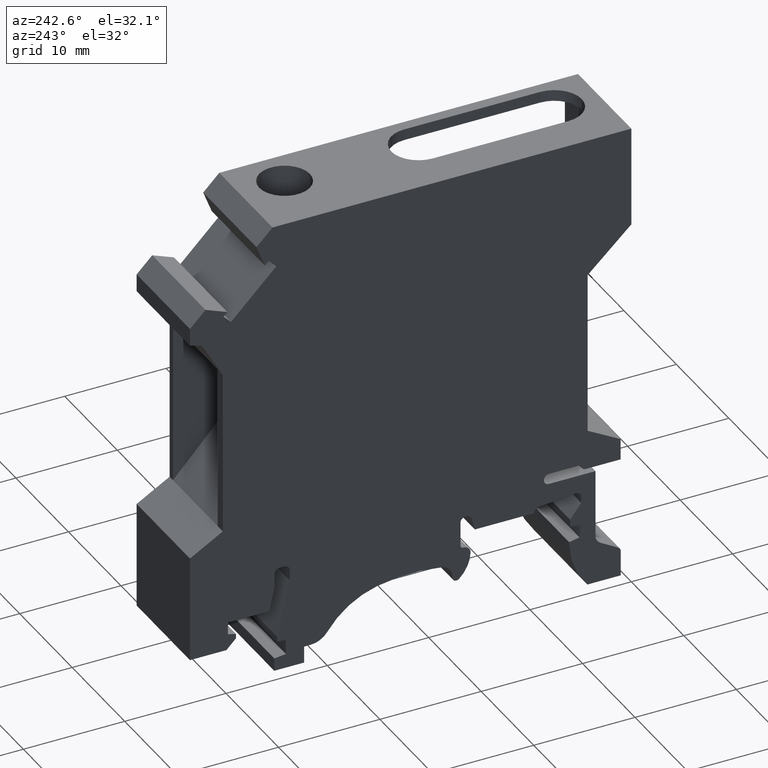
[diagram: clean part render]
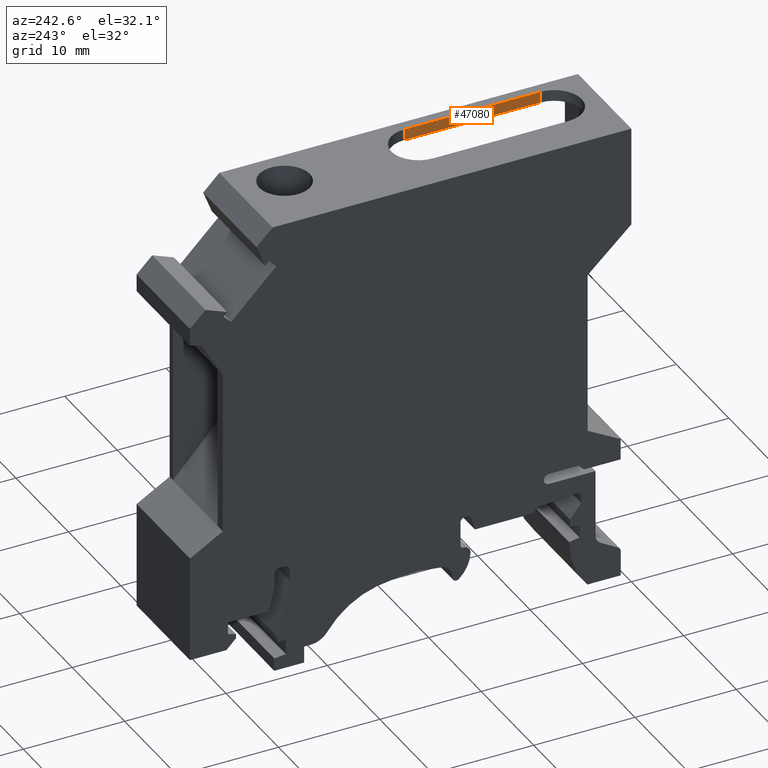
[diagram: same view with one face highlighted and labeled with its STEP entity id]
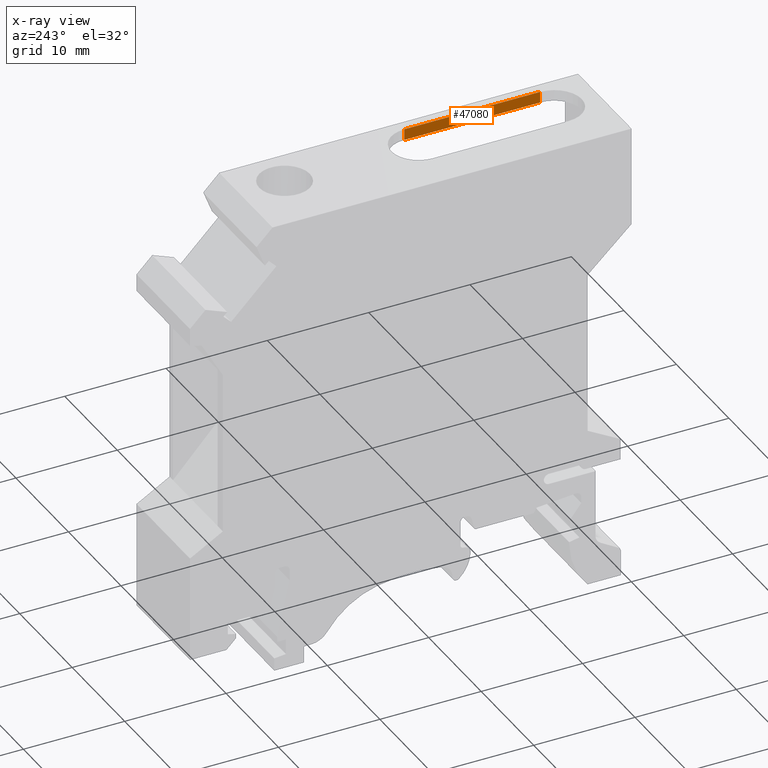
[diagram: x-ray of the same camera — body ghosted, the highlighted face saturated]
A machine part, auxiliary view. The second image highlights one B-rep face of the part: STEP entity #47080.
The next image is the same camera in x-ray: the body ghosted, the highlighted face saturated — about 0% of this face is hidden behind the body in this view.
In plain terms, the highlighted planar face has unit normal (-1, 0, 0).
Its self-contained STEP definition (entity closure, byte-faithful):
#17310=CARTESIAN_POINT('',(27.2291997327281,36.058658177701,9.05));
#17320=VERTEX_POINT('',#17310);
#17680=CARTESIAN_POINT('',(13.8291997327281,36.058658177701,9.05));
#17690=VERTEX_POINT('',#17680);
#17720=CARTESIAN_POINT('',(0.,36.058658177701,9.05));
#17730=DIRECTION('',(-1.,0.,0.));
#17740=VECTOR('',#17730,1.);
#17750=LINE('',#17720,#17740);
#17760=EDGE_CURVE('',#17320,#17690,#17750,.T.);
#18190=CARTESIAN_POINT('',(0.,34.958658177701,9.05));
#18200=DIRECTION('',(1.,0.,0.));
#18210=VECTOR('',#18200,1.);
#18220=LINE('',#18190,#18210);
#18230=CARTESIAN_POINT('',(13.8291997327281,34.958658177701,9.05));
#18240=VERTEX_POINT('',#18230);
#18250=CARTESIAN_POINT('',(27.2291997327281,34.958658177701,9.05));
#18260=VERTEX_POINT('',#18250);
#18270=EDGE_CURVE('',#18240,#18260,#18220,.T.);
#46230=CARTESIAN_POINT('',(13.8291997327281,0.,9.05));
#46240=DIRECTION('',(0.,-1.,0.));
#46250=VECTOR('',#46240,1.);
#46260=LINE('',#46230,#46250);
#46270=EDGE_CURVE('',#17690,#18240,#46260,.T.);
#46810=CARTESIAN_POINT('',(27.2291997327281,0.,9.05));
#46820=DIRECTION('',(0.,-1.,0.));
#46830=VECTOR('',#46820,1.);
#46840=LINE('',#46810,#46830);
#46850=EDGE_CURVE('',#17320,#18260,#46840,.T.);
#46970=CARTESIAN_POINT('',(29.9291997327281,36.058658177701,9.05));
#46980=DIRECTION('',(0.,0.,-1.));
#46990=DIRECTION('',(1.,0.,0.));
#47000=AXIS2_PLACEMENT_3D('',#46970,#46980,#46990);
#47010=PLANE('',#47000);
#47020=ORIENTED_EDGE('',*,*,#17760,.F.);
#47030=ORIENTED_EDGE('',*,*,#46270,.F.);
#47040=ORIENTED_EDGE('',*,*,#18270,.F.);
#47050=ORIENTED_EDGE('',*,*,#46850,.T.);
#47060=EDGE_LOOP('',(#47050,#47040,#47030,#47020));
#47070=FACE_OUTER_BOUND('',#47060,.T.);
#47080=ADVANCED_FACE('',(#47070),#47010,.T.);